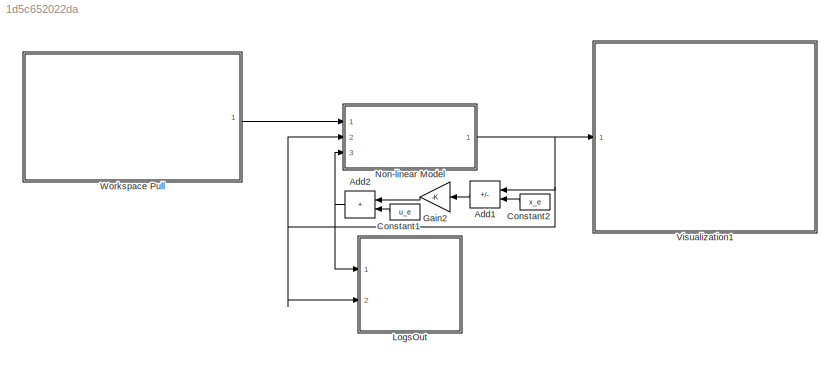
MODEL slx_1d5c652022da
KIND model
CONFIG AbsTol = auto
CONFIG EnableMultiTasking = off
CONFIG FixedStep = auto
CONFIG MaxStep = auto
CONFIG MinStep = auto
CONFIG RelTol = 1e-3
CONFIG SampleTimeConstraint = Unconstrained
CONFIG SolverName = VariableStepAuto
CONFIG StartTime = 0.0
CONFIG StopTime = 10.0
BLOCK [Sum] Add1
  IconShape = rectangular
  Inputs = +-
  Ports = [2, 1]
BLOCK [Sum] Add2
  IconShape = rectangular
  Ports = [2, 1]
BLOCK [Constant] Constant1
  Value = u_e
BLOCK [Constant] Constant2
  Value = x_e
BLOCK [Gain] Gain2
  Gain = -K
  Multiplication = Matrix(K*u)
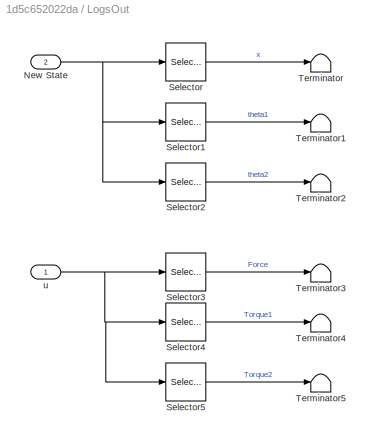
BLOCK [SubSystem] LogsOut
  Ports = [2]
  RequestExecContextInheritance = off
BLOCK [Inport] LogsOut/New State
  Port = 2
BLOCK [Selector] LogsOut/Selector
  IndexOptions = Index vector (dialog)
  Indices = 1
  InputPortWidth = 6
  OutputSizes = 1
  Ports = [1, 1]
BLOCK [Selector] LogsOut/Selector1
  IndexOptions = Index vector (dialog)
  Indices = 2
  InputPortWidth = 6
  OutputSizes = 1
  Ports = [1, 1]
BLOCK [Selector] LogsOut/Selector2
  IndexOptions = Index vector (dialog)
  Indices = 3
  InputPortWidth = 6
  OutputSizes = 1
  Ports = [1, 1]
BLOCK [Selector] LogsOut/Selector3
  IndexOptions = Index vector (dialog)
  Indices = 1
  InputPortWidth = 3
  OutputSizes = 1
  Ports = [1, 1]
BLOCK [Selector] LogsOut/Selector4
  IndexOptions = Index vector (dialog)
  Indices = 2
  InputPortWidth = 3
  OutputSizes = 1
  Ports = [1, 1]
BLOCK [Selector] LogsOut/Selector5
  IndexOptions = Index vector (dialog)
  Indices = 3
  InputPortWidth = 3
  OutputSizes = 1
  Ports = [1, 1]
BLOCK [Terminator] LogsOut/Terminator
BLOCK [Terminator] LogsOut/Terminator1
BLOCK [Terminator] LogsOut/Terminator2
BLOCK [Terminator] LogsOut/Terminator3
BLOCK [Terminator] LogsOut/Terminator4
BLOCK [Terminator] LogsOut/Terminator5
BLOCK [Inport] LogsOut/u
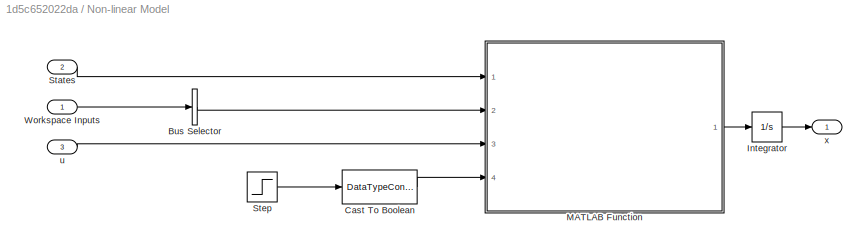
BLOCK [SubSystem] Non-linear Model
  Ports = [3, 1]
  RequestExecContextInheritance = off
BLOCK [BusSelector] Non-linear Model/Bus Selector
  OutputAsBus = on
  OutputSignals = Initial_States
  Ports = [1, 1]
BLOCK [DataTypeConversion] Non-linear Model/Cast To Boolean
  OutDataTypeStr = boolean
  RndMeth = Floor
  SaturateOnIntegerOverflow = off
BLOCK [Integrator] Non-linear Model/Integrator
  InitialCondition = [x0.x;x0.theta1;x0.theta2;x0.x_dot;x0.theta1_dot;x0.theta2_dot]
  Ports = [1, 1]
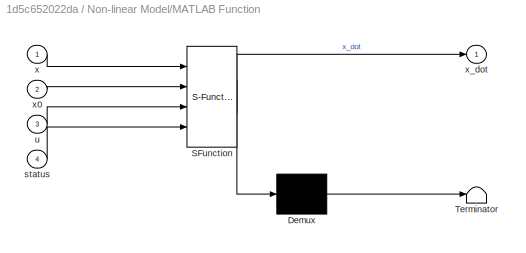
BLOCK [SubSystem] Non-linear Model/MATLAB Function
  ErrorFcn = Stateflow.Translate.translate
  PermitHierarchicalResolution = ExplicitOnly
  Ports = [4, 1]
  RequestExecContextInheritance = off
  SFBlockType = MATLAB Function
  TreatAsAtomicUnit = on
BLOCK [Demux] Non-linear Model/MATLAB Function/ Demux 
  Outputs = 1
  Ports = [1, 1]
BLOCK [S-Function] Non-linear Model/MATLAB Function/ SFunction 
  EnableBusSupport = on
  FunctionName = sf_sfun
  PortCounts = [4 2]
  Ports = [4, 2]
  SFcnIsStateOwnerBlock = off
  SFunctionDeploymentMode = off
  Tag = Stateflow S-Function 2
BLOCK [Terminator] Non-linear Model/MATLAB Function/ Terminator 
BLOCK [Inport] Non-linear Model/MATLAB Function/status
  Port = 4
BLOCK [Inport] Non-linear Model/MATLAB Function/u
  Port = 3
BLOCK [Inport] Non-linear Model/MATLAB Function/x
BLOCK [Inport] Non-linear Model/MATLAB Function/x0
  Port = 2
BLOCK [Outport] Non-linear Model/MATLAB Function/x_dot
BLOCK [Inport] Non-linear Model/States
  Port = 2
BLOCK [Step] Non-linear Model/Step
  SampleTime = 0
  Time = .01
BLOCK [Inport] Non-linear Model/Workspace Inputs 
BLOCK [Inport] Non-linear Model/u
  Port = 3
BLOCK [Outport] Non-linear Model/x
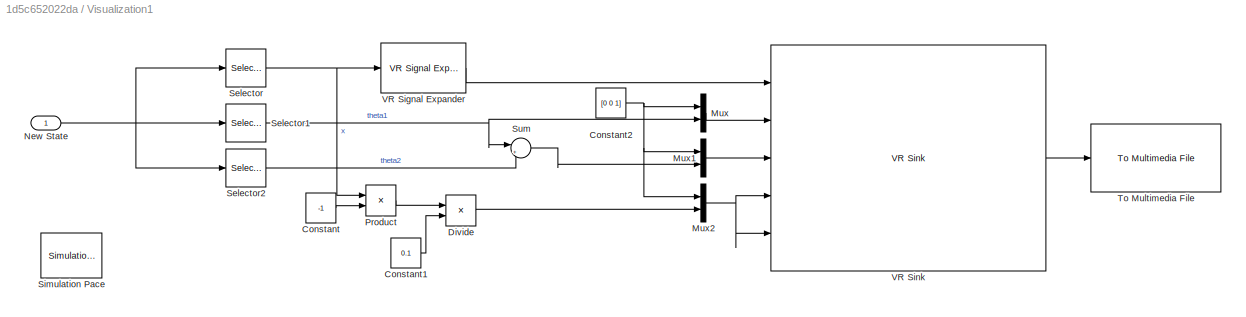
BLOCK [SubSystem] Visualization1
  Ports = [1]
  RequestExecContextInheritance = off
BLOCK [Constant] Visualization1/Constant
  Value = -1
BLOCK [Constant] Visualization1/Constant1
  Value = 0.1
BLOCK [Constant] Visualization1/Constant2
  Value = [0 0 1]
BLOCK [Product] Visualization1/Divide
  Inputs = */
  Ports = [2, 1]
BLOCK [Mux] Visualization1/Mux
  DisplayOption = bar
  Inputs = 2
  Ports = [2, 1]
BLOCK [Mux] Visualization1/Mux1
  DisplayOption = bar
  Inputs = 2
  Ports = [2, 1]
BLOCK [Mux] Visualization1/Mux2
  DisplayOption = bar
  Inputs = 2
  Ports = [2, 1]
BLOCK [Inport] Visualization1/New State
BLOCK [Product] Visualization1/Product
  Ports = [2, 1]
BLOCK [Selector] Visualization1/Selector
  IndexOptions = Index vector (dialog)
  Indices = 1
  InputPortWidth = 6
  OutputSizes = 1
  Ports = [1, 1]
BLOCK [Selector] Visualization1/Selector1
  IndexOptions = Index vector (dialog)
  Indices = 2
  InputPortWidth = 6
  OutputSizes = 1
  Ports = [1, 1]
BLOCK [Selector] Visualization1/Selector2
  IndexOptions = Index vector (dialog)
  Indices = 3
  InputPortWidth = 6
  OutputSizes = 1
  Ports = [1, 1]
BLOCK [Reference] Visualization1/Simulation Pace  REF=aerolibanimutils/Simulation Pace
  AttributesFormatString = %<SleepMode>\n%<SimulationPace> sec/sec
  Ports = []
  SourceBlock = aerolibanimutils/Simulation Pace
  SourceProductBaseCode = AE
  SourceType = Simulation Pace
BLOCK [Sum] Visualization1/Sum
  Inputs = |+-
  Ports = [2, 1]
BLOCK [Reference] Visualization1/To Multimedia File  REF=dspvision/To Multimedia File
  Ports = [1]
  SourceBlock = dspvision/To Multimedia File
  SourceProductBaseCode = DS,HW,VP
  SourceType = To Multimedia File
BLOCK [Reference] Visualization1/VR Signal Expander  REF=vrlib/VR Signal Expander
  Ports = [1, 1]
  SourceBlock = vrlib/VR Signal Expander
  SourceProductBaseCode = SL
  SourceType = VR Signal Expander
BLOCK [Reference] Visualization1/VR Sink  REF=vrlib/VR Sink
  InstantiateOnLoad = on
  Ports = [5, 1]
  SourceBlock = vrlib/VR Sink
  SourceProductBaseCode = SL
  SourceType = Virtual Reality Sink
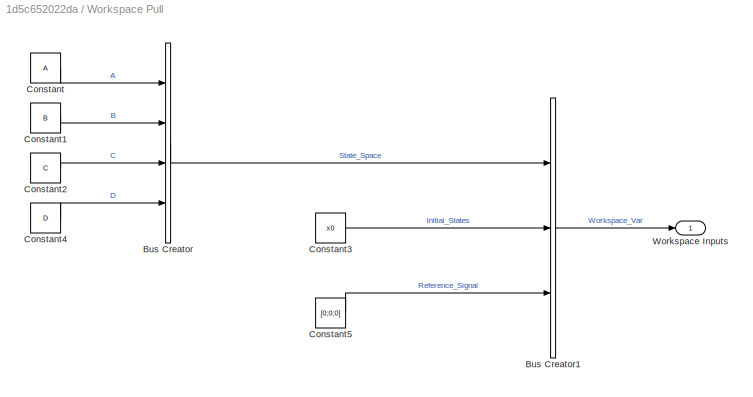
BLOCK [SubSystem] Workspace Pull
  Ports = [0, 1]
  RequestExecContextInheritance = off
BLOCK [BusCreator] Workspace Pull/Bus Creator
  DisplayOption = bar
  InheritFromInputs = on
  Inputs = 4
  Ports = [4, 1]
BLOCK [BusCreator] Workspace Pull/Bus Creator1
  DisplayOption = bar
  InheritFromInputs = on
  Inputs = 3
  Ports = [3, 1]
BLOCK [Constant] Workspace Pull/Constant
  Value = A
  VectorParams1D = off
BLOCK [Constant] Workspace Pull/Constant1
  Value = B
  VectorParams1D = off
BLOCK [Constant] Workspace Pull/Constant2
  Value = C
  VectorParams1D = off
BLOCK [Constant] Workspace Pull/Constant3
  OutDataTypeStr = Bus: State_bus
  Value = x0
  VectorParams1D = off
BLOCK [Constant] Workspace Pull/Constant4
  Value = D
  VectorParams1D = off
BLOCK [Constant] Workspace Pull/Constant5
  OutDataTypeStr = double
  Value = [0;0;0]
  VectorParams1D = off
BLOCK [Outport] Workspace Pull/Workspace Inputs 
LINE Add1:1 -> Gain2:1
NET Add2:1 -> LogsOut:1, Non-linear Model:3
LINE Constant1:1 -> Add2:2
LINE Constant2:1 -> Add1:2
LINE Gain2:1 -> Add2:1
NET LogsOut/New State:1 -> LogsOut/Selector1:1, LogsOut/Selector2:1, LogsOut/Selector:1
LINE LogsOut/Selector1:1 -> LogsOut/Terminator1:1
LINE LogsOut/Selector2:1 -> LogsOut/Terminator2:1
LINE LogsOut/Selector3:1 -> LogsOut/Terminator3:1
LINE LogsOut/Selector4:1 -> LogsOut/Terminator4:1
LINE LogsOut/Selector5:1 -> LogsOut/Terminator5:1
LINE LogsOut/Selector:1 -> LogsOut/Terminator:1
NET LogsOut/u:1 -> LogsOut/Selector3:1, LogsOut/Selector4:1, LogsOut/Selector5:1
LINE Non-linear Model/Bus Selector:1 -> Non-linear Model/MATLAB Function:2
LINE Non-linear Model/Cast To Boolean:1 -> Non-linear Model/MATLAB Function:4
LINE Non-linear Model/Integrator:1 -> Non-linear Model/x:1
LINE Non-linear Model/MATLAB Function:1 -> Non-linear Model/Integrator:1
LINE Non-linear Model/States:1 -> Non-linear Model/MATLAB Function:1
LINE Non-linear Model/Step:1 -> Non-linear Model/Cast To Boolean:1
LINE Non-linear Model/Workspace Inputs :1 -> Non-linear Model/Bus Selector:1
LINE Non-linear Model/u:1 -> Non-linear Model/MATLAB Function:3
NET Non-linear Model:1 -> Add1:1, LogsOut:2, Non-linear Model:2, Visualization1:1
LINE Visualization1/Constant1:1 -> Visualization1/Divide:2
NET Visualization1/Constant2:1 -> Visualization1/Mux1:1, Visualization1/Mux2:1, Visualization1/Mux:1
LINE Visualization1/Constant:1 -> Visualization1/Product:2
LINE Visualization1/Divide:1 -> Visualization1/Mux2:2
LINE Visualization1/Mux1:1 -> Visualization1/VR Sink:3
NET Visualization1/Mux2:1 -> Visualization1/VR Sink:4, Visualization1/VR Sink:5
LINE Visualization1/Mux:1 -> Visualization1/VR Sink:2
NET Visualization1/New State:1 -> Visualization1/Selector1:1, Visualization1/Selector2:1, Visualization1/Selector:1
LINE Visualization1/Product:1 -> Visualization1/Divide:1
NET Visualization1/Selector1:1 -> Visualization1/Mux:2, Visualization1/Sum:1
LINE Visualization1/Selector2:1 -> Visualization1/Sum:2
NET Visualization1/Selector:1 -> Visualization1/Product:1, Visualization1/VR Signal Expander:1
LINE Visualization1/Sum:1 -> Visualization1/Mux1:2
LINE Visualization1/VR Signal Expander:1 -> Visualization1/VR Sink:1
LINE Visualization1/VR Sink:1 -> Visualization1/To Multimedia File:1
LINE Workspace Pull/Bus Creator1:1 -> Workspace Pull/Workspace Inputs :1
LINE Workspace Pull/Bus Creator:1 -> Workspace Pull/Bus Creator1:1
LINE Workspace Pull/Constant1:1 -> Workspace Pull/Bus Creator:2
LINE Workspace Pull/Constant2:1 -> Workspace Pull/Bus Creator:3
LINE Workspace Pull/Constant3:1 -> Workspace Pull/Bus Creator1:2
LINE Workspace Pull/Constant4:1 -> Workspace Pull/Bus Creator:4
LINE Workspace Pull/Constant5:1 -> Workspace Pull/Bus Creator1:3
LINE Workspace Pull/Constant:1 -> Workspace Pull/Bus Creator:1
LINE Workspace Pull:1 -> Non-linear Model:1
note: NET lines group one-source signal fan-out (src -> all destinations, sorted); 1:1 wires keep LINE
CHART Non-linear Model/MATLAB Function states=1 transitions=1
  STATE_LABEL 'eML_blk_kernel()'
  STATE_LABEL 'SCRIPT:\nfunction x_dot  = Nonlinear_Dynamics(x,x0,u,status)\n    if status == false\n        x2 = x0.theta1;\n        x3 = x0.theta2;\n        x4 = x0.x_dot;\n        x5 = x0.theta1_dot;\n        x6 = x0.theta2_dot;\n        u1 = u(1);\n        u2 = u(2);\n        u3 = u(3);\n    else\n        x2 = x(2);\n        x3 = x(3);\n        x4 = x(4);\n        x5 = x(5);\n        x6 = x(6);\n        u1 = u(1);\n        u2...<+1198ch>'
CHART  states=0 transitions=0
